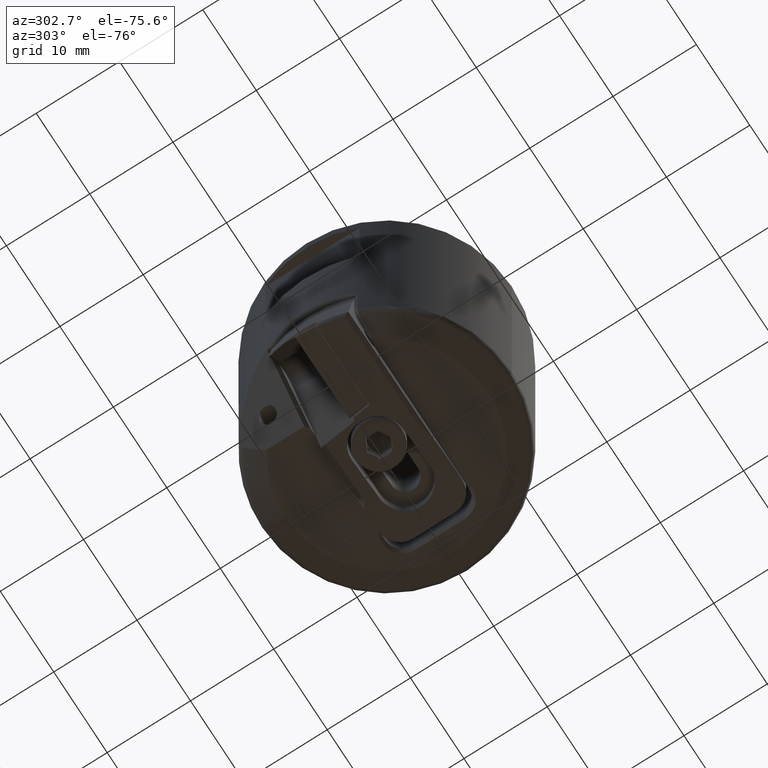
[diagram: clean part render]
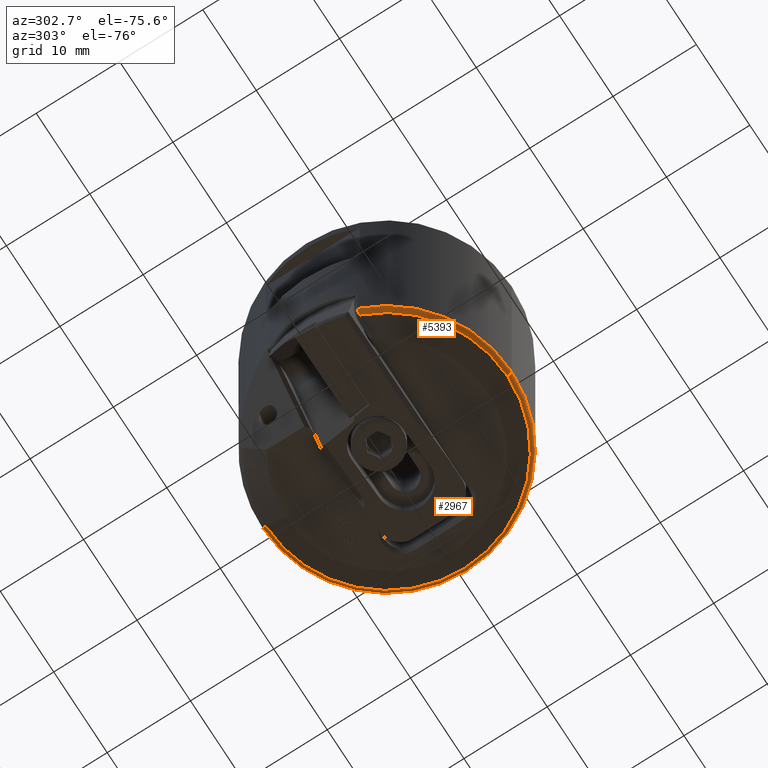
[diagram: same view with one multi-face feature highlighted, each face labeled with its STEP entity id]
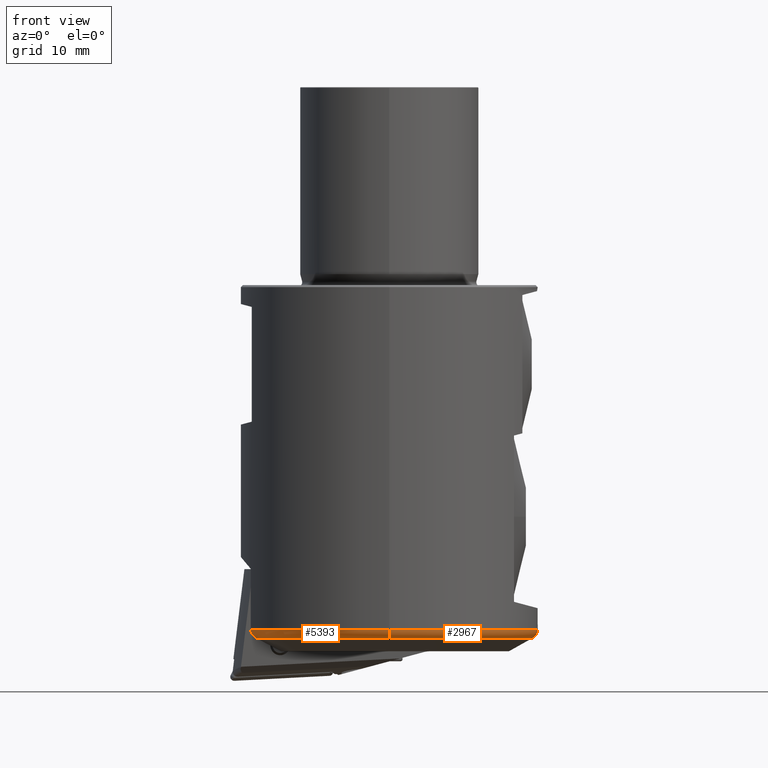
[diagram: same view with one multi-face feature highlighted, each face labeled with its STEP entity id]
A machine part, auxiliary view. The highlighted faces form ONE feature: a constant-radius fillet chain: 2 tangent blend faces with common blend radius 1 mm. The faces share edges in the B-rep.
A second angle (front view) of the same feature is appended — it is thin or edge-on in the first view.
Their STEP definitions:
[1] entity #5393 (Torus):
#2069=EDGE_CURVE('NONE',#3281,#5397,#6012,.T.);
#2405=VERTEX_POINT('NONE',#6378);
#2585=VERTEX_POINT('NONE',#6579);
#2725=EDGE_CURVE('NONE',#2585,#3281,#6738,.T.);
#2727=EDGE_CURVE('NONE',#2405,#2585,#6740,.F.);
#3239=EDGE_CURVE('NONE',#2405,#5397,#7313,.T.);
#3281=VERTEX_POINT('NONE',#7358);
#5393=ADVANCED_FACE('NONE',(#9678),#9679,.T.);
#5397=VERTEX_POINT('NONE',#9683);
#6012=CIRCLE('',#10521,14.5);
#6378=CARTESIAN_POINT('',(-13.9951543636778,-5.39774530121886,-34.7772014636199));
#6579=CARTESIAN_POINT('',(-1.83697019872103E-015,-15.0,-34.7772014636199));
#6738=CIRCLE('',#12939,1.0);
#6740=CIRCLE('',#12942,15.0);
#7313=B_SPLINE_CURVE_WITH_KNOTS('',3,(#14403,#14404,#14405,#14406,#14407,#14408,#14409),.UNSPECIFIED.,.F.,.F.,(4,3,4),(0.0,0.673825677632932,1.0),.UNSPECIFIED.);
#7358=CARTESIAN_POINT('',(-1.77573785876366E-015,-14.5,-35.6432268674044));
#9678=FACE_OUTER_BOUND('',#21223,.T.);
#9679=TOROIDAL_SURFACE('',#21224,14.0,1.0);
#9683=CARTESIAN_POINT('',(-13.4725215797023,-5.36107846281466,-35.6432268674044));
#10521=AXIS2_PLACEMENT_3D('',#22906,#22907,#22908);
#12939=AXIS2_PLACEMENT_3D('',#23686,#23687,#23688);
#12942=AXIS2_PLACEMENT_3D('',#23689,#23690,#23691);
#14403=CARTESIAN_POINT('',(-13.9951543636778,-5.39774530121886,-34.7772014636199));
#14404=CARTESIAN_POINT('',(-13.9953315485679,-5.39728590016347,-35.0154505409896));
#14405=CARTESIAN_POINT('',(-13.9016151898157,-5.39141587860384,-35.2523441620072));
#14406=CARTESIAN_POINT('',(-13.7424076051362,-5.38006060850623,-35.4294459774847));
#14407=CARTESIAN_POINT('',(-13.6653410465703,-5.37456393829562,-35.5151744775565));
#14408=CARTESIAN_POINT('',(-13.5733428971674,-5.36796221132531,-35.5876729626491));
#14409=CARTESIAN_POINT('',(-13.4725215797023,-5.36107846281466,-35.6432268674044));
#21223=EDGE_LOOP('',(#26685,#26686,#26687,#26688));
#21224=AXIS2_PLACEMENT_3D('',#26689,#26690,#26691);
#22906=CARTESIAN_POINT('',(0.0,0.0,-35.6432268674044));
#22907=DIRECTION('',(0.0,0.0,-1.0));
#22908=DIRECTION('',(0.0,1.0,0.0));
#23686=CARTESIAN_POINT('',(0.0,-14.0,-34.7772014636199));
#23687=DIRECTION('',(1.0,0.0,0.0));
#23688=DIRECTION('',(0.0,-1.0,0.0));
#23689=CARTESIAN_POINT('',(0.0,0.0,-34.7772014636199));
#23690=DIRECTION('',(0.0,0.0,-1.0));
#23691=DIRECTION('',(0.0,1.0,0.0));
#26685=ORIENTED_EDGE('',*,*,#2725,.F.);
#26686=ORIENTED_EDGE('',*,*,#2727,.F.);
#26687=ORIENTED_EDGE('',*,*,#3239,.T.);
#26688=ORIENTED_EDGE('',*,*,#2069,.F.);
#26689=CARTESIAN_POINT('',(0.0,0.0,-34.7772014636199));
#26690=DIRECTION('',(0.0,0.0,-1.0));
#26691=DIRECTION('',(0.0,-1.0,0.0));
[2] entity #2967 (Torus):
#2459=EDGE_CURVE('NONE',#2585,#2983,#6442,.F.);
#2585=VERTEX_POINT('NONE',#6579);
#2725=EDGE_CURVE('NONE',#2585,#3281,#6738,.T.);
#2889=VERTEX_POINT('NONE',#6921);
#2967=ADVANCED_FACE('NONE',(#7005),#7006,.T.);
#2983=VERTEX_POINT('NONE',#7022);
#3281=VERTEX_POINT('NONE',#7358);
#4897=EDGE_CURVE('NONE',#2983,#2889,#9142,.T.);
#5633=EDGE_CURVE('NONE',#2889,#3281,#9942,.T.);
#6442=CIRCLE('',#11811,15.0);
#6579=CARTESIAN_POINT('',(-1.83697019872103E-015,-15.0,-34.7772014636199));
#6738=CIRCLE('',#12939,1.0);
#6921=CARTESIAN_POINT('',(0.0,14.5,-35.6432268674044));
#7005=FACE_OUTER_BOUND('',#13753,.T.);
#7006=TOROIDAL_SURFACE('',#13754,14.0,1.0);
#7022=CARTESIAN_POINT('',(0.0,15.0,-34.7772014636199));
#7358=CARTESIAN_POINT('',(-1.77573785876366E-015,-14.5,-35.6432268674044));
#9142=CIRCLE('',#19291,1.0);
#9942=CIRCLE('',#22027,14.5);
#11811=AXIS2_PLACEMENT_3D('',#23394,#23395,#23396);
#12939=AXIS2_PLACEMENT_3D('',#23686,#23687,#23688);
#13753=EDGE_LOOP('',(#23934,#23935,#23936,#23937));
#13754=AXIS2_PLACEMENT_3D('',#23938,#23939,#23940);
#19291=AXIS2_PLACEMENT_3D('',#26210,#26211,#26212);
#22027=AXIS2_PLACEMENT_3D('',#26988,#26989,#26990);
#23394=CARTESIAN_POINT('',(0.0,0.0,-34.7772014636199));
#23395=DIRECTION('',(0.0,0.0,-1.0));
#23396=DIRECTION('',(0.0,1.0,0.0));
#23686=CARTESIAN_POINT('',(0.0,-14.0,-34.7772014636199));
#23687=DIRECTION('',(1.0,0.0,0.0));
#23688=DIRECTION('',(0.0,-1.0,0.0));
#23934=ORIENTED_EDGE('',*,*,#4897,.F.);
#23935=ORIENTED_EDGE('',*,*,#2459,.F.);
#23936=ORIENTED_EDGE('',*,*,#2725,.T.);
#23937=ORIENTED_EDGE('',*,*,#5633,.F.);
#23938=CARTESIAN_POINT('',(0.0,0.0,-34.7772014636199));
#23939=DIRECTION('',(0.0,0.0,-1.0));
#23940=DIRECTION('',(0.0,-1.0,0.0));
#26210=CARTESIAN_POINT('',(-1.71450551880629E-015,14.0,-34.7772014636199));
#26211=DIRECTION('',(-1.0,-1.22464679914735E-016,0.0));
#26212=DIRECTION('',(-1.22464679914735E-016,1.0,0.0));
#26988=CARTESIAN_POINT('',(0.0,0.0,-35.6432268674044));
#26989=DIRECTION('',(0.0,0.0,-1.0));
#26990=DIRECTION('',(0.0,1.0,0.0));